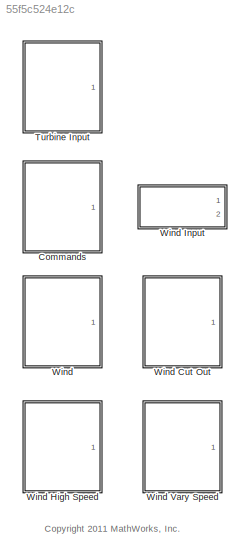
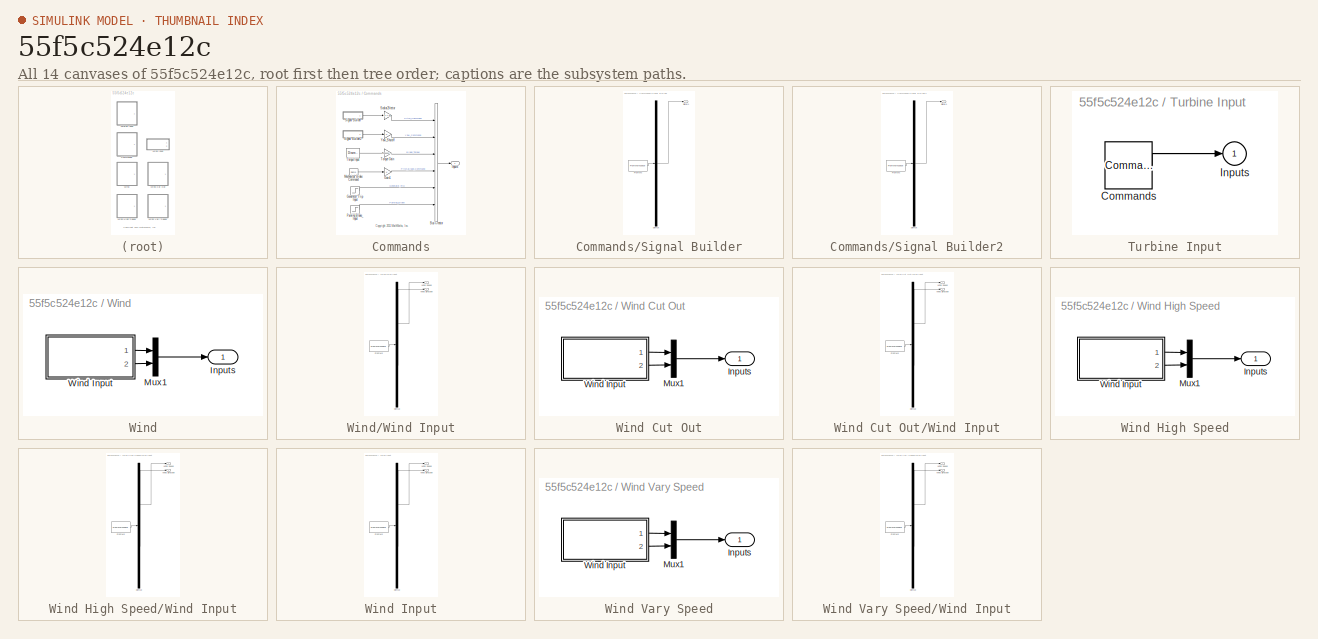
[diagram: thumbnail index - all 14 canvases of the model, root first then tree order]
MODEL slx_55f5c524e12c
KIND library
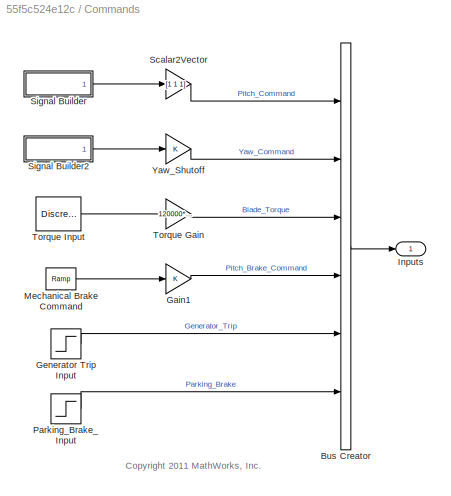
BLOCK [SubSystem] Commands
  FunctionWithSeparateData = off
  MaskHideContents = off
  MinAlgLoopOccurrences = off
  Opaque = off
  Ports = [0, 1]
  PropExecContextOutsideSubsystem = off
  RTWSystemCode = Auto
  RequestExecContextInheritance = off
BLOCK [BusCreator] Commands/Bus Creator
  DisplayOption = bar
  Inputs = 6
  Ports = [6, 1]
BLOCK [Gain] Commands/Gain1
  OutDataTypeStr = Inherit: Inherit via internal rule
  ParamDataTypeStr = Inherit: Inherit via internal rule
  SaturateOnIntegerOverflow = off
BLOCK [Step] Commands/Generator Trip Input
  Before = 1
  SampleTime = 0
  Time = 90
BLOCK [Outport] Commands/Inputs
  IconDisplay = Port number
BLOCK [Reference] Commands/Mechanical Brake Command  REF=simulink/Sources/Ramp
  FunctionWithSeparateData = off
  GeneratePreprocessorConditionals = off
  Ports = [0, 1]
  RTWMemSecDataConstants = Inherit from model
  RTWMemSecDataInternal = Inherit from model
  RTWMemSecDataParameters = Inherit from model
  RTWMemSecFuncExecute = Inherit from model
  RTWMemSecFuncInitTerm = Inherit from model
  ShowPortLabels = FromPortIcon
  SourceBlock = simulink/Sources/Ramp
  SourceType = Ramp
  SystemSampleTime = -1
  VectorParams1D = on
  X0 = 0
  slope = 1
  start = 40
BLOCK [Step] Commands/Parking_Brake_Input
  After = 0
  Before = 1
  SampleTime = 0
  Time = 5
BLOCK [Gain] Commands/Scalar2Vector
  Gain = [1 1 1]
  OutDataTypeStr = Inherit: Inherit via internal rule
  ParamDataTypeStr = Inherit: Inherit via internal rule
  SaturateOnIntegerOverflow = off
BLOCK [SubSystem] Commands/Signal Builder
  ClipboardFcn = sigbuilder_block('clipboard');
  CloseFcn = sigbuilder_block('close');
  ContinueFcn = sigbuilder_block('continue')
  CopyFcn = sigbuilder_block('copy');
  DeleteFcn = sigbuilder_block('delete');
  FunctionWithSeparateData = off
  LoadFcn = sigbuilder_block('load');
  MaskHideContents = on
  MinAlgLoopOccurrences = off
  ModelCloseFcn = sigbuilder_block('modelClose');
  NameChangeFcn = sigbuilder_block('namechange');
  Opaque = off
  OpenFcn = sigbuilder_block('open',[214.5 254.25 550.5 399.75 ]);
  PauseFcn = sigbuilder_block('pause')
  Ports = [0, 1]
  PreSaveFcn = sigbuilder_block('preSave');
  PropExecContextOutsideSubsystem = off
  RTWSystemCode = Auto
  RequestExecContextInheritance = off
  StartFcn = sigbuilder_block('start');
  StopFcn = sigbuilder_block('stop');
  Tag = STV Subsys
BLOCK [Demux] Commands/Signal Builder/Demux
  Outputs = 1
  Ports = [1, 1]
  Tag = STV Demux
BLOCK [FromWorkspace] Commands/Signal Builder/FromWs
  SampleTime = 0
  Tag = STV FromWs
  VariableName = tuvar
  ZeroCross = on
BLOCK [Outport] Commands/Signal Builder/Signal 1
  IconDisplay = Port number
  Tag = STV Outport
BLOCK [SubSystem] Commands/Signal Builder2
  ClipboardFcn = sigbuilder_block('clipboard');
  CloseFcn = sigbuilder_block('close');
  ContinueFcn = sigbuilder_block('continue')
  CopyFcn = sigbuilder_block('copy');
  DeleteFcn = sigbuilder_block('delete');
  FunctionWithSeparateData = off
  LoadFcn = sigbuilder_block('load');
  MaskHideContents = on
  MinAlgLoopOccurrences = off
  ModelCloseFcn = sigbuilder_block('modelClose');
  NameChangeFcn = sigbuilder_block('namechange');
  Opaque = off
  OpenFcn = sigbuilder_block('open',[28.5 161.25 550.5 489 ]);
  PauseFcn = sigbuilder_block('pause')
  Ports = [0, 1]
  PreSaveFcn = sigbuilder_block('preSave');
  PropExecContextOutsideSubsystem = off
  RTWSystemCode = Auto
  RequestExecContextInheritance = off
  StartFcn = sigbuilder_block('start');
  StopFcn = sigbuilder_block('stop');
  Tag = STV Subsys
BLOCK [Demux] Commands/Signal Builder2/Demux
  Outputs = 1
  Ports = [1, 1]
  Tag = STV Demux
BLOCK [FromWorkspace] Commands/Signal Builder2/FromWs
  SampleTime = 0
  Tag = STV FromWs
  VariableName = tuvar
  ZeroCross = on
BLOCK [Outport] Commands/Signal Builder2/Signal 1
  IconDisplay = Port number
  Tag = STV Outport
BLOCK [Gain] Commands/Torque Gain
  Gain = 120000*1.23
  OutDataTypeStr = Inherit: Inherit via internal rule
  ParamDataTypeStr = Inherit: Inherit via internal rule
  SaturateOnIntegerOverflow = off
BLOCK [DiscretePulseGenerator] Commands/Torque Input
  Amplitude = 10
  Period = 100
  Ports = [0, 1]
  PulseType = Time based
  PulseWidth = 10
BLOCK [Gain] Commands/Yaw_Shutoff
  OutDataTypeStr = Inherit: Inherit via internal rule
  ParamDataTypeStr = Inherit: Inherit via internal rule
  SaturateOnIntegerOverflow = off
BLOCK [SubSystem] Turbine Input
  BlockChoice = Commands
  FunctionWithSeparateData = off
  MaskHideContents = off
  MemberBlocks = Commands,Wind,Wind Cut Out,Wind High Speed,Wind Vary Speed
  MinAlgLoopOccurrences = off
  Opaque = off
  Ports = [0, 1]
  PropExecContextOutsideSubsystem = off
  RTWSystemCode = Auto
  RequestExecContextInheritance = off
  TemplateBlock = self
BLOCK [Reference] Turbine Input/Commands  REF=Turbine_Input_Lib/Commands
  FunctionWithSeparateData = off
  GeneratePreprocessorConditionals = off
  Ports = [0, 1]
  ShowPortLabels = FromPortIcon
  SourceBlock = Turbine_Input_Lib/Commands
  SystemSampleTime = -1
BLOCK [Outport] Turbine Input/Inputs
  IconDisplay = Port number
BLOCK [SubSystem] Wind
  FunctionWithSeparateData = off
  MaskHideContents = off
  MinAlgLoopOccurrences = off
  Opaque = off
  Ports = [0, 1]
  PropExecContextOutsideSubsystem = off
  RTWSystemCode = Auto
  RequestExecContextInheritance = off
BLOCK [SubSystem] Wind Cut Out
  FunctionWithSeparateData = off
  MaskHideContents = off
  MinAlgLoopOccurrences = off
  Opaque = off
  Ports = [0, 1]
  PropExecContextOutsideSubsystem = off
  RTWSystemCode = Auto
  RequestExecContextInheritance = off
BLOCK [Outport] Wind Cut Out/Inputs
  IconDisplay = Port number
BLOCK [Mux] Wind Cut Out/Mux1
  DisplayOption = bar
  Inputs = 2
  Ports = [2, 1]
BLOCK [SubSystem] Wind Cut Out/Wind Input
  AncestorBlock = Turbine_Input_Lib/Wind Input
  ClipboardFcn = sigbuilder_block('clipboard');
  CloseFcn = sigbuilder_block('close');
  ContinueFcn = sigbuilder_block('continue')
  CopyFcn = sigbuilder_block('copy');
  DeleteFcn = sigbuilder_block('delete');
  FunctionWithSeparateData = off
  LoadFcn = sigbuilder_block('load');
  MaskHideContents = on
  MinAlgLoopOccurrences = off
  ModelCloseFcn = sigbuilder_block('modelClose');
  NameChangeFcn = sigbuilder_block('namechange');
  Opaque = off
  OpenFcn = sigbuilder_block('open',[-3.75 303 762 399.75 ]);
  PauseFcn = sigbuilder_block('pause')
  Ports = [0, 2]
  PreSaveFcn = sigbuilder_block('preSave');
  PropExecContextOutsideSubsystem = off
  RTWSystemCode = Auto
  RequestExecContextInheritance = off
  StartFcn = sigbuilder_block('start');
  StopFcn = sigbuilder_block('stop');
  Tag = STV Subsys
BLOCK [Demux] Wind Cut Out/Wind Input/Demux
  Outputs = 2
  Ports = [1, 2]
  Tag = STV Demux
BLOCK [FromWorkspace] Wind Cut Out/Wind Input/FromWs
  SampleTime = 0
  Tag = STV FromWs
  VariableName = tuvar
  ZeroCross = on
BLOCK [Outport] Wind Cut Out/Wind Input/Wind Direction
  IconDisplay = Port number
  Port = 2
  Tag = STV Outport
BLOCK [Outport] Wind Cut Out/Wind Input/Wind Speed
  IconDisplay = Port number
  Tag = STV Outport
BLOCK [SubSystem] Wind High Speed
  FunctionWithSeparateData = off
  MaskHideContents = off
  MinAlgLoopOccurrences = off
  Opaque = off
  Ports = [0, 1]
  PropExecContextOutsideSubsystem = off
  RTWSystemCode = Auto
  RequestExecContextInheritance = off
BLOCK [Outport] Wind High Speed/Inputs
  IconDisplay = Port number
BLOCK [Mux] Wind High Speed/Mux1
  DisplayOption = bar
  Inputs = 2
  Ports = [2, 1]
BLOCK [SubSystem] Wind High Speed/Wind Input
  AncestorBlock = Turbine_Input_Lib/Wind Input
  ClipboardFcn = sigbuilder_block('clipboard');
  CloseFcn = sigbuilder_block('close');
  ContinueFcn = sigbuilder_block('continue')
  CopyFcn = sigbuilder_block('copy');
  DeleteFcn = sigbuilder_block('delete');
  FunctionWithSeparateData = off
  LoadFcn = sigbuilder_block('load');
  MaskHideContents = on
  MinAlgLoopOccurrences = off
  ModelCloseFcn = sigbuilder_block('modelClose');
  NameChangeFcn = sigbuilder_block('namechange');
  Opaque = off
  OpenFcn = sigbuilder_block('open',[-3.75 303 762 399.75 ]);
  PauseFcn = sigbuilder_block('pause')
  Ports = [0, 2]
  PreSaveFcn = sigbuilder_block('preSave');
  PropExecContextOutsideSubsystem = off
  RTWSystemCode = Auto
  RequestExecContextInheritance = off
  StartFcn = sigbuilder_block('start');
  StopFcn = sigbuilder_block('stop');
  Tag = STV Subsys
BLOCK [Demux] Wind High Speed/Wind Input/Demux
  Outputs = 2
  Ports = [1, 2]
  Tag = STV Demux
BLOCK [FromWorkspace] Wind High Speed/Wind Input/FromWs
  SampleTime = 0
  Tag = STV FromWs
  VariableName = tuvar
  ZeroCross = on
BLOCK [Outport] Wind High Speed/Wind Input/Wind Direction
  IconDisplay = Port number
  Port = 2
  Tag = STV Outport
BLOCK [Outport] Wind High Speed/Wind Input/Wind Speed
  IconDisplay = Port number
  Tag = STV Outport
BLOCK [SubSystem] Wind Input
  ClipboardFcn = sigbuilder_block('clipboard');
  CloseFcn = sigbuilder_block('close');
  ContinueFcn = sigbuilder_block('continue')
  CopyFcn = sigbuilder_block('copy');
  DeleteFcn = sigbuilder_block('delete');
  FunctionWithSeparateData = off
  LoadFcn = sigbuilder_block('load');
  MaskHideContents = on
  MinAlgLoopOccurrences = off
  ModelCloseFcn = sigbuilder_block('modelClose');
  NameChangeFcn = sigbuilder_block('namechange');
  Opaque = off
  OpenFcn = sigbuilder_block('open',[-3.75 303 762 399.75 ]);
  PauseFcn = sigbuilder_block('pause')
  Ports = [0, 2]
  PreSaveFcn = sigbuilder_block('preSave');
  PropExecContextOutsideSubsystem = off
  RTWSystemCode = Auto
  RequestExecContextInheritance = off
  StartFcn = sigbuilder_block('start');
  StopFcn = sigbuilder_block('stop');
  Tag = STV Subsys
BLOCK [Demux] Wind Input/Demux
  Outputs = 2
  Ports = [1, 2]
  Tag = STV Demux
BLOCK [FromWorkspace] Wind Input/FromWs
  SampleTime = 0
  Tag = STV FromWs
  VariableName = tuvar
  ZeroCross = on
BLOCK [Outport] Wind Input/Wind Direction
  IconDisplay = Port number
  Port = 2
  Tag = STV Outport
BLOCK [Outport] Wind Input/Wind Speed
  IconDisplay = Port number
  Tag = STV Outport
BLOCK [SubSystem] Wind Vary Speed
  FunctionWithSeparateData = off
  MaskHideContents = off
  MinAlgLoopOccurrences = off
  Opaque = off
  Ports = [0, 1]
  PropExecContextOutsideSubsystem = off
  RTWSystemCode = Auto
  RequestExecContextInheritance = off
BLOCK [Outport] Wind Vary Speed/Inputs
  IconDisplay = Port number
BLOCK [Mux] Wind Vary Speed/Mux1
  DisplayOption = bar
  Inputs = 2
  Ports = [2, 1]
BLOCK [SubSystem] Wind Vary Speed/Wind Input
  AncestorBlock = Turbine_Input_Lib/Wind Input
  ClipboardFcn = sigbuilder_block('clipboard');
  CloseFcn = sigbuilder_block('close');
  ContinueFcn = sigbuilder_block('continue')
  CopyFcn = sigbuilder_block('copy');
  DeleteFcn = sigbuilder_block('delete');
  FunctionWithSeparateData = off
  LoadFcn = sigbuilder_block('load');
  MaskHideContents = on
  MinAlgLoopOccurrences = off
  ModelCloseFcn = sigbuilder_block('modelClose');
  NameChangeFcn = sigbuilder_block('namechange');
  Opaque = off
  OpenFcn = sigbuilder_block('open',[-3.75 303 762 399.75 ]);
  PauseFcn = sigbuilder_block('pause')
  Ports = [0, 2]
  PreSaveFcn = sigbuilder_block('preSave');
  PropExecContextOutsideSubsystem = off
  RTWSystemCode = Auto
  RequestExecContextInheritance = off
  StartFcn = sigbuilder_block('start');
  StopFcn = sigbuilder_block('stop');
  Tag = STV Subsys
BLOCK [Demux] Wind Vary Speed/Wind Input/Demux
  Outputs = 2
  Ports = [1, 2]
  Tag = STV Demux
BLOCK [FromWorkspace] Wind Vary Speed/Wind Input/FromWs
  SampleTime = 0
  Tag = STV FromWs
  VariableName = tuvar
  ZeroCross = on
BLOCK [Outport] Wind Vary Speed/Wind Input/Wind Direction
  IconDisplay = Port number
  Port = 2
  Tag = STV Outport
BLOCK [Outport] Wind Vary Speed/Wind Input/Wind Speed
  IconDisplay = Port number
  Tag = STV Outport
BLOCK [Outport] Wind/Inputs
  IconDisplay = Port number
BLOCK [Mux] Wind/Mux1
  DisplayOption = bar
  Inputs = 2
  Ports = [2, 1]
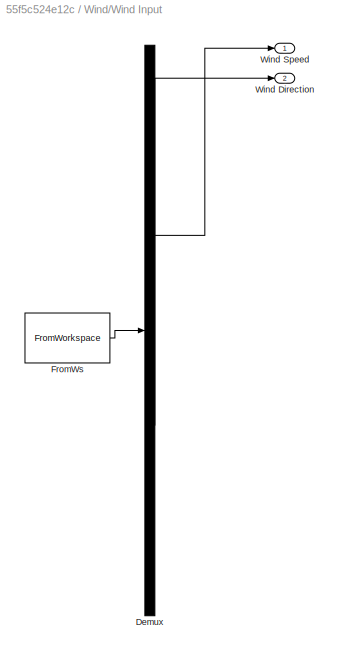
BLOCK [SubSystem] Wind/Wind Input
  AncestorBlock = Turbine_Input_Lib/Wind Input
  ClipboardFcn = sigbuilder_block('clipboard');
  CloseFcn = sigbuilder_block('close');
  ContinueFcn = sigbuilder_block('continue')
  CopyFcn = sigbuilder_block('copy');
  DeleteFcn = sigbuilder_block('delete');
  FunctionWithSeparateData = off
  LoadFcn = sigbuilder_block('load');
  MaskHideContents = on
  MinAlgLoopOccurrences = off
  ModelCloseFcn = sigbuilder_block('modelClose');
  NameChangeFcn = sigbuilder_block('namechange');
  Opaque = off
  OpenFcn = sigbuilder_block('open',[-3.75 303 762 399.75 ]);
  PauseFcn = sigbuilder_block('pause')
  Ports = [0, 2]
  PreSaveFcn = sigbuilder_block('preSave');
  PropExecContextOutsideSubsystem = off
  RTWSystemCode = Auto
  RequestExecContextInheritance = off
  StartFcn = sigbuilder_block('start');
  StopFcn = sigbuilder_block('stop');
  Tag = STV Subsys
BLOCK [Demux] Wind/Wind Input/Demux
  Outputs = 2
  Ports = [1, 2]
  Tag = STV Demux
BLOCK [FromWorkspace] Wind/Wind Input/FromWs
  SampleTime = 0
  Tag = STV FromWs
  VariableName = tuvar
  ZeroCross = on
BLOCK [Outport] Wind/Wind Input/Wind Direction
  IconDisplay = Port number
  Port = 2
  Tag = STV Outport
BLOCK [Outport] Wind/Wind Input/Wind Speed
  IconDisplay = Port number
  Tag = STV Outport
ANNOTATION (root): <copyright redacted>
ANNOTATION Commands: <copyright redacted>
LINE Commands/Bus Creator:1 -> Commands/Inputs:1
LINE Commands/Gain1:1 -> Commands/Bus Creator:4
LINE Commands/Generator Trip Input:1 -> Commands/Bus Creator:5
LINE Commands/Mechanical Brake Command:1 -> Commands/Gain1:1
LINE Commands/Parking_Brake_Input:1 -> Commands/Bus Creator:6
LINE Commands/Scalar2Vector:1 -> Commands/Bus Creator:1
LINE Commands/Signal Builder2:1 -> Commands/Yaw_Shutoff:1
LINE Commands/Signal Builder:1 -> Commands/Scalar2Vector:1
LINE Commands/Torque Gain:1 -> Commands/Bus Creator:3
LINE Commands/Torque Input:1 -> Commands/Torque Gain:1
LINE Commands/Yaw_Shutoff:1 -> Commands/Bus Creator:2
LINE Turbine Input/Commands:1 -> Turbine Input/Inputs:1
LINE Wind Cut Out/Mux1:1 -> Wind Cut Out/Inputs:1
LINE Wind Cut Out/Wind Input:1 -> Wind Cut Out/Mux1:1
LINE Wind Cut Out/Wind Input:2 -> Wind Cut Out/Mux1:2
LINE Wind High Speed/Mux1:1 -> Wind High Speed/Inputs:1
LINE Wind High Speed/Wind Input:1 -> Wind High Speed/Mux1:1
LINE Wind High Speed/Wind Input:2 -> Wind High Speed/Mux1:2
LINE Wind Vary Speed/Mux1:1 -> Wind Vary Speed/Inputs:1
LINE Wind Vary Speed/Wind Input:1 -> Wind Vary Speed/Mux1:1
LINE Wind Vary Speed/Wind Input:2 -> Wind Vary Speed/Mux1:2
LINE Wind/Mux1:1 -> Wind/Inputs:1
LINE Wind/Wind Input:1 -> Wind/Mux1:1
LINE Wind/Wind Input:2 -> Wind/Mux1:2
